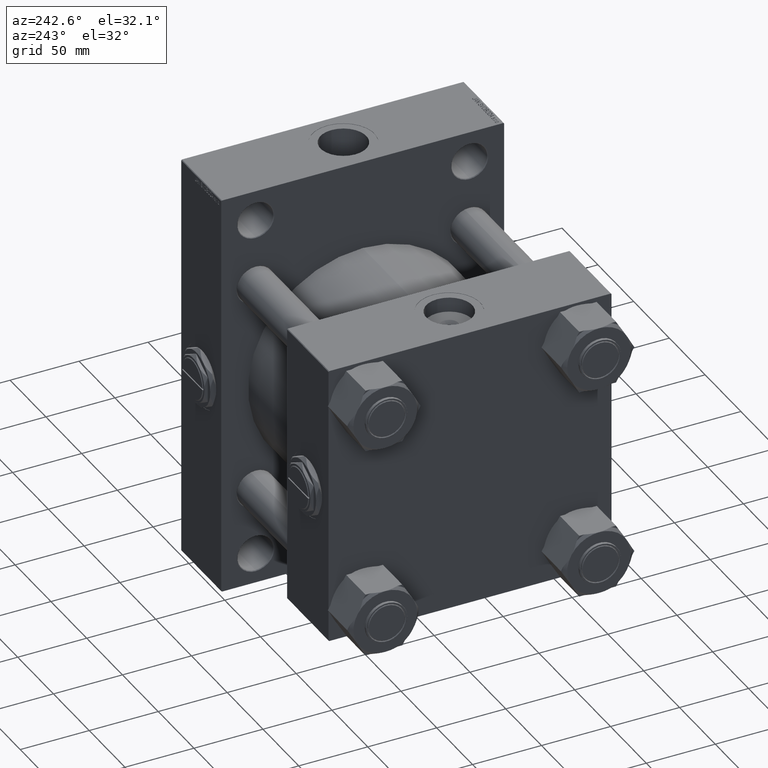
[diagram: clean part render]
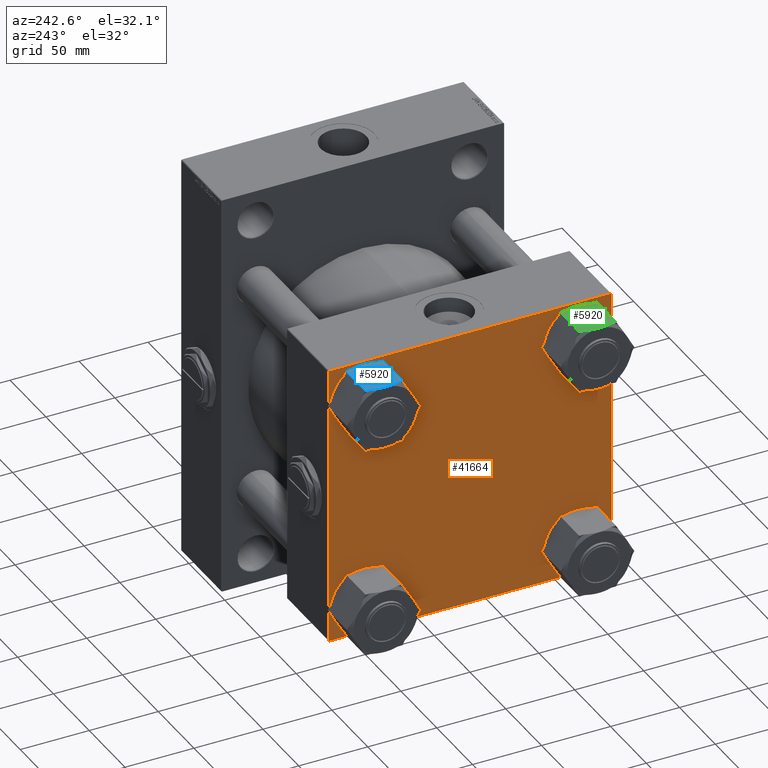
[diagram: same view with three faces highlighted in distinct colors, each labeled with its STEP entity id]
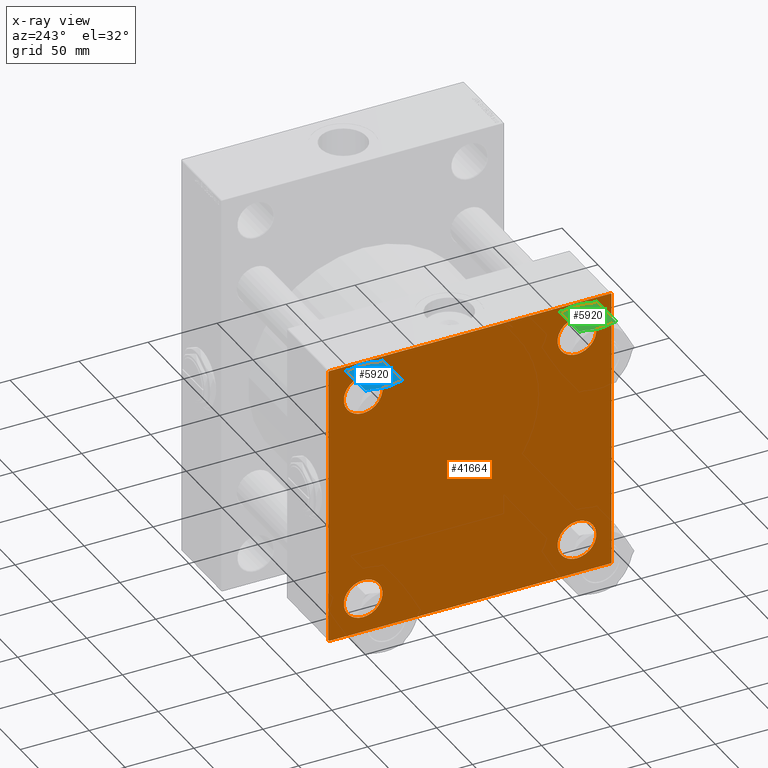
[diagram: x-ray of the same camera — body ghosted, the three highlighted faces saturated]
A machine part, auxiliary view with three faces highlighted in distinct colors.
The next image is the same camera in x-ray (body ghosted, the three faces saturated) — at least one of them is partly hidden behind the body in this view.
Their STEP definitions:

[orange] entity #41664 — the highlighted planar face has unit normal (-1, 0, 0).
#313 = CARTESIAN_POINT ( 'NONE',  ( 0.000000000000000000, -77.44999999999996021, -77.45000000000003126 ) ) ;
#320 = DIRECTION ( 'NONE',  ( 1.000000000000000000, -0.000000000000000000, -0.000000000000000000 ) ) ;
#1053 = CIRCLE ( 'NONE', #30814, 14.00000000000012434 ) ;
#1211 = ORIENTED_EDGE ( 'NONE', *, *, #16814, .T. ) ;
#2374 = DIRECTION ( 'NONE',  ( 1.000000000000000000, -0.000000000000000000, -0.000000000000000000 ) ) ;
#2419 = AXIS2_PLACEMENT_3D ( 'NONE', #3618, #320, #49461 ) ;
#2522 = LINE ( 'NONE', #14355, #8264 ) ;
#3566 = CARTESIAN_POINT ( 'NONE',  ( 0.000000000000000000, -102.2499999999999716, -102.2499999999999716 ) ) ;
#3618 = CARTESIAN_POINT ( 'NONE',  ( 0.000000000000000000, 77.44999999999998863, -77.45000000000001705 ) ) ;
#3768 = EDGE_LOOP ( 'NONE', ( #33969, #37242 ) ) ;
#3982 = VECTOR ( 'NONE', #48347, 1000.000000000000000 ) ;
#4395 = EDGE_CURVE ( 'NONE', #43389, #43873, #1053, .T. ) ;
#4599 = FACE_BOUND ( 'NONE', #3768, .T. ) ;
#4601 = VECTOR ( 'NONE', #26733, 1000.000000000000114 ) ;
#4613 = DIRECTION ( 'NONE',  ( 1.000000000000000000, -0.000000000000000000, -0.000000000000000000 ) ) ;
#4649 = VERTEX_POINT ( 'NONE', #40609 ) ;
#4988 = ORIENTED_EDGE ( 'NONE', *, *, #22493, .T. ) ;
#5573 = CARTESIAN_POINT ( 'NONE',  ( 0.000000000000000000, -102.4999999999999716, 102.0000000000000000 ) ) ;
#6041 = EDGE_CURVE ( 'NONE', #42962, #8964, #26854, .T. ) ;
#6396 = VERTEX_POINT ( 'NONE', #31850 ) ;
#6580 = EDGE_CURVE ( 'NONE', #6396, #20231, #25292, .T. ) ;
#6804 = ORIENTED_EDGE ( 'NONE', *, *, #21654, .F. ) ;
#7025 = LINE ( 'NONE', #22378, #3982 ) ;
#7135 = CARTESIAN_POINT ( 'NONE',  ( 0.000000000000000000, -101.9999999999999147, 102.5000000000000000 ) ) ;
#7502 = DIRECTION ( 'NONE',  ( -0.000000000000000000, 0.7071067811865474617, 0.7071067811865474617 ) ) ;
#7766 = ORIENTED_EDGE ( 'NONE', *, *, #33422, .T. ) ;
#8126 = PLANE ( 'NONE',  #10154 ) ;
#8264 = VECTOR ( 'NONE', #33254, 1000.000000000000114 ) ;
#8964 = VERTEX_POINT ( 'NONE', #12624 ) ;
#9339 = CARTESIAN_POINT ( 'NONE',  ( 0.000000000000000000, 102.5000000000000284, -102.4999999999999716 ) ) ;
#9638 = DIRECTION ( 'NONE',  ( 0.000000000000000000, 0.000000000000000000, 1.000000000000000000 ) ) ;
#9904 = VERTEX_POINT ( 'NONE', #5573 ) ;
#10154 = AXIS2_PLACEMENT_3D ( 'NONE', #31035, #11908, #20212 ) ;
#10166 = VECTOR ( 'NONE', #10232, 1000.000000000000114 ) ;
#10232 = DIRECTION ( 'NONE',  ( 0.000000000000000000, 0.7071067811865474617, -0.7071067811865474617 ) ) ;
#10457 = EDGE_CURVE ( 'NONE', #6396, #20692, #32406, .T. ) ;
#10612 = EDGE_LOOP ( 'NONE', ( #48595, #23602 ) ) ;
#11065 = DIRECTION ( 'NONE',  ( 0.000000000000000000, 0.000000000000000000, 1.000000000000000000 ) ) ;
#11589 = AXIS2_PLACEMENT_3D ( 'NONE', #24482, #24733, #9638 ) ;
#11764 = VERTEX_POINT ( 'NONE', #31800 ) ;
#11908 = DIRECTION ( 'NONE',  ( -1.000000000000000000, 0.000000000000000000, 0.000000000000000000 ) ) ;
#12336 = CARTESIAN_POINT ( 'NONE',  ( 0.000000000000000000, 102.5000000000000284, 102.0000000000000142 ) ) ;
#12486 = CARTESIAN_POINT ( 'NONE',  ( 0.000000000000000000, -77.44999999999996021, 63.44999999999991047 ) ) ;
#12624 = CARTESIAN_POINT ( 'NONE',  ( 0.000000000000000000, -77.44999999999996021, 91.45000000000015916 ) ) ;
#12928 = VERTEX_POINT ( 'NONE', #46358 ) ;
#13300 = EDGE_CURVE ( 'NONE', #13935, #36889, #45596, .T. ) ;
#13362 = ORIENTED_EDGE ( 'NONE', *, *, #47770, .T. ) ;
#13676 = CIRCLE ( 'NONE', #2419, 14.00000000000012434 ) ;
#13935 = VERTEX_POINT ( 'NONE', #20173 ) ;
#14355 = CARTESIAN_POINT ( 'NONE',  ( 0.000000000000000000, 102.2500000000000000, -102.2500000000000000 ) ) ;
#14798 = LINE ( 'NONE', #22362, #40673 ) ;
#15302 = ORIENTED_EDGE ( 'NONE', *, *, #6580, .F. ) ;
#15563 = ORIENTED_EDGE ( 'NONE', *, *, #37057, .T. ) ;
#15635 = DIRECTION ( 'NONE',  ( 0.000000000000000000, 0.000000000000000000, 1.000000000000000000 ) ) ;
#15672 = VERTEX_POINT ( 'NONE', #39352 ) ;
#16031 = CARTESIAN_POINT ( 'NONE',  ( 0.000000000000000000, 102.5000000000000284, 102.5000000000000284 ) ) ;
#16180 = FACE_BOUND ( 'NONE', #10612, .T. ) ;
#16814 = EDGE_CURVE ( 'NONE', #43873, #43389, #31932, .T. ) ;
#18693 = LINE ( 'NONE', #3566, #4601 ) ;
#18865 = DIRECTION ( 'NONE',  ( 1.000000000000000000, -0.000000000000000000, -0.000000000000000000 ) ) ;
#19455 = FACE_BOUND ( 'NONE', #47957, .T. ) ;
#19916 = DIRECTION ( 'NONE',  ( 1.000000000000000000, -0.000000000000000000, -0.000000000000000000 ) ) ;
#20173 = CARTESIAN_POINT ( 'NONE',  ( 0.000000000000000000, 77.44999999999998863, 91.45000000000014495 ) ) ;
#20212 = DIRECTION ( 'NONE',  ( 0.000000000000000000, 0.000000000000000000, 1.000000000000000000 ) ) ;
#20231 = VERTEX_POINT ( 'NONE', #7135 ) ;
#20692 = VERTEX_POINT ( 'NONE', #12336 ) ;
#21159 = LINE ( 'NONE', #9339, #25710 ) ;
#21654 = EDGE_CURVE ( 'NONE', #9904, #15672, #7025, .T. ) ;
#22362 = CARTESIAN_POINT ( 'NONE',  ( 0.000000000000000000, -102.2499999999999716, 102.2499999999999716 ) ) ;
#22378 = CARTESIAN_POINT ( 'NONE',  ( 0.000000000000000000, -102.4999999999999716, 102.5000000000000000 ) ) ;
#22493 = EDGE_CURVE ( 'NONE', #12928, #34610, #21159, .T. ) ;
#22679 = EDGE_LOOP ( 'NONE', ( #28746, #7766, #4988, #13362, #6804, #48556, #15302, #27073 ) ) ;
#22830 = VECTOR ( 'NONE', #25541, 1000.000000000000000 ) ;
#23174 = EDGE_CURVE ( 'NONE', #4649, #11764, #13676, .T. ) ;
#23582 = EDGE_LOOP ( 'NONE', ( #36798, #1211 ) ) ;
#23602 = ORIENTED_EDGE ( 'NONE', *, *, #32312, .T. ) ;
#23868 = DIRECTION ( 'NONE',  ( 1.000000000000000000, -0.000000000000000000, -0.000000000000000000 ) ) ;
#24482 = CARTESIAN_POINT ( 'NONE',  ( 0.000000000000000000, -77.44999999999996021, 77.45000000000003126 ) ) ;
#24555 = CARTESIAN_POINT ( 'NONE',  ( 0.000000000000000000, 102.5000000000000284, 102.5000000000000284 ) ) ;
#24733 = DIRECTION ( 'NONE',  ( 1.000000000000000000, -0.000000000000000000, -0.000000000000000000 ) ) ;
#25292 = LINE ( 'NONE', #24555, #22830 ) ;
#25541 = DIRECTION ( 'NONE',  ( 0.000000000000000000, -1.000000000000000000, -1.353930517835556973E-16 ) ) ;
#25710 = VECTOR ( 'NONE', #36769, 1000.000000000000000 ) ;
#26733 = DIRECTION ( 'NONE',  ( 0.000000000000000000, -0.7071067811865474617, 0.7071067811865474617 ) ) ;
#26854 = CIRCLE ( 'NONE', #11589, 14.00000000000012434 ) ;
#27073 = ORIENTED_EDGE ( 'NONE', *, *, #10457, .T. ) ;
#27188 = CARTESIAN_POINT ( 'NONE',  ( 0.000000000000000000, 77.44999999999998863, 77.45000000000001705 ) ) ;
#28746 = ORIENTED_EDGE ( 'NONE', *, *, #36194, .T. ) ;
#30652 = DIRECTION ( 'NONE',  ( 0.000000000000000000, 0.000000000000000000, -1.000000000000000000 ) ) ;
#30814 = AXIS2_PLACEMENT_3D ( 'NONE', #313, #4613, #46922 ) ;
#30990 = CARTESIAN_POINT ( 'NONE',  ( 0.000000000000000000, -77.44999999999996021, -63.44999999999991047 ) ) ;
#31035 = CARTESIAN_POINT ( 'NONE',  ( 0.000000000000000000, 0.000000000000000000, 0.000000000000000000 ) ) ;
#31163 = DIRECTION ( 'NONE',  ( 0.000000000000000000, 0.000000000000000000, 1.000000000000000000 ) ) ;
#31538 = FACE_BOUND ( 'NONE', #23582, .T. ) ;
#31800 = CARTESIAN_POINT ( 'NONE',  ( 0.000000000000000000, 77.44999999999998863, -91.45000000000014495 ) ) ;
#31850 = CARTESIAN_POINT ( 'NONE',  ( 0.000000000000000000, 102.0000000000000142, 102.5000000000000284 ) ) ;
#31932 = CIRCLE ( 'NONE', #43237, 14.00000000000012434 ) ;
#32312 = EDGE_CURVE ( 'NONE', #11764, #4649, #41237, .T. ) ;
#32406 = LINE ( 'NONE', #48513, #10166 ) ;
#33254 = DIRECTION ( 'NONE',  ( -0.000000000000000000, -0.7071067811865474617, -0.7071067811865474617 ) ) ;
#33422 = EDGE_CURVE ( 'NONE', #45341, #12928, #2522, .T. ) ;
#33521 = AXIS2_PLACEMENT_3D ( 'NONE', #38008, #18865, #11065 ) ;
#33969 = ORIENTED_EDGE ( 'NONE', *, *, #38880, .T. ) ;
#34122 = AXIS2_PLACEMENT_3D ( 'NONE', #27188, #42311, #38779 ) ;
#34610 = VERTEX_POINT ( 'NONE', #44909 ) ;
#35576 = FACE_OUTER_BOUND ( 'NONE', #22679, .T. ) ;
#35953 = CARTESIAN_POINT ( 'NONE',  ( 0.000000000000000000, -77.44999999999996021, 77.45000000000003126 ) ) ;
#36194 = EDGE_CURVE ( 'NONE', #20692, #45341, #42997, .T. ) ;
#36271 = CARTESIAN_POINT ( 'NONE',  ( 0.000000000000000000, 102.5000000000000284, -101.9999999999999147 ) ) ;
#36578 = CIRCLE ( 'NONE', #47839, 14.00000000000012434 ) ;
#36769 = DIRECTION ( 'NONE',  ( 0.000000000000000000, -1.000000000000000000, -1.353930517835556727E-16 ) ) ;
#36798 = ORIENTED_EDGE ( 'NONE', *, *, #4395, .T. ) ;
#36889 = VERTEX_POINT ( 'NONE', #37294 ) ;
#37057 = EDGE_CURVE ( 'NONE', #36889, #13935, #40566, .T. ) ;
#37242 = ORIENTED_EDGE ( 'NONE', *, *, #6041, .T. ) ;
#37294 = CARTESIAN_POINT ( 'NONE',  ( 0.000000000000000000, 77.44999999999998863, 63.44999999999989626 ) ) ;
#38008 = CARTESIAN_POINT ( 'NONE',  ( 0.000000000000000000, 77.44999999999998863, 77.45000000000001705 ) ) ;
#38779 = DIRECTION ( 'NONE',  ( 0.000000000000000000, 0.000000000000000000, 1.000000000000000000 ) ) ;
#38880 = EDGE_CURVE ( 'NONE', #8964, #42962, #36578, .T. ) ;
#39352 = CARTESIAN_POINT ( 'NONE',  ( 0.000000000000000000, -102.5000000000000000, -101.9999999999998863 ) ) ;
#40421 = AXIS2_PLACEMENT_3D ( 'NONE', #46121, #19916, #15635 ) ;
#40566 = CIRCLE ( 'NONE', #34122, 14.00000000000012434 ) ;
#40609 = CARTESIAN_POINT ( 'NONE',  ( 0.000000000000000000, 77.44999999999998863, -63.44999999999989626 ) ) ;
#40673 = VECTOR ( 'NONE', #7502, 1000.000000000000114 ) ;
#40950 = EDGE_CURVE ( 'NONE', #9904, #20231, #14798, .T. ) ;
#41237 = CIRCLE ( 'NONE', #40421, 14.00000000000012434 ) ;
#41664 = ADVANCED_FACE ( 'NONE', ( #4599, #31538, #16180, #19455, #35576 ), #8126, .T. ) ;
#42281 = CARTESIAN_POINT ( 'NONE',  ( 0.000000000000000000, -77.44999999999996021, -91.45000000000015916 ) ) ;
#42311 = DIRECTION ( 'NONE',  ( 1.000000000000000000, -0.000000000000000000, -0.000000000000000000 ) ) ;
#42485 = ORIENTED_EDGE ( 'NONE', *, *, #13300, .T. ) ;
#42962 = VERTEX_POINT ( 'NONE', #12486 ) ;
#42997 = LINE ( 'NONE', #16031, #48604 ) ;
#43237 = AXIS2_PLACEMENT_3D ( 'NONE', #48226, #2374, #48704 ) ;
#43389 = VERTEX_POINT ( 'NONE', #30990 ) ;
#43873 = VERTEX_POINT ( 'NONE', #42281 ) ;
#44909 = CARTESIAN_POINT ( 'NONE',  ( 0.000000000000000000, -101.9999999999999432, -102.5000000000000000 ) ) ;
#45341 = VERTEX_POINT ( 'NONE', #36271 ) ;
#45596 = CIRCLE ( 'NONE', #33521, 14.00000000000012434 ) ;
#46121 = CARTESIAN_POINT ( 'NONE',  ( 0.000000000000000000, 77.44999999999998863, -77.45000000000001705 ) ) ;
#46358 = CARTESIAN_POINT ( 'NONE',  ( 0.000000000000000000, 102.0000000000000142, -102.4999999999999716 ) ) ;
#46922 = DIRECTION ( 'NONE',  ( 0.000000000000000000, 0.000000000000000000, 1.000000000000000000 ) ) ;
#47770 = EDGE_CURVE ( 'NONE', #34610, #15672, #18693, .T. ) ;
#47839 = AXIS2_PLACEMENT_3D ( 'NONE', #35953, #23868, #31163 ) ;
#47957 = EDGE_LOOP ( 'NONE', ( #42485, #15563 ) ) ;
#48226 = CARTESIAN_POINT ( 'NONE',  ( 0.000000000000000000, -77.44999999999996021, -77.45000000000003126 ) ) ;
#48347 = DIRECTION ( 'NONE',  ( 0.000000000000000000, -1.353930517835556973E-16, -1.000000000000000000 ) ) ;
#48513 = CARTESIAN_POINT ( 'NONE',  ( 0.000000000000000000, 102.2500000000000142, 102.2500000000000142 ) ) ;
#48556 = ORIENTED_EDGE ( 'NONE', *, *, #40950, .T. ) ;
#48595 = ORIENTED_EDGE ( 'NONE', *, *, #23174, .T. ) ;
#48604 = VECTOR ( 'NONE', #30652, 1000.000000000000000 ) ;
#48704 = DIRECTION ( 'NONE',  ( 0.000000000000000000, 0.000000000000000000, 1.000000000000000000 ) ) ;
#49461 = DIRECTION ( 'NONE',  ( 0.000000000000000000, 0.000000000000000000, 1.000000000000000000 ) ) ;

[blue] entity #5920 — the highlighted planar face has unit normal (0, -0, -1).
#283 = CARTESIAN_POINT ( 'NONE',  ( -6.612214801278793352, -23.05359624874175495, -0.9172679422720545483 ) ) ;
#586 = CARTESIAN_POINT ( 'NONE',  ( 13.31000000000000938, -23.05359624874175850, -28.99999999999999645 ) ) ;
#827 = EDGE_CURVE ( 'NONE', #32111, #29596, #44716, .T. ) ;
#1312 = CARTESIAN_POINT ( 'NONE',  ( -13.31000000000000405, -23.05359624874176205, -2.000000000000001776 ) ) ;
#1352 = CARTESIAN_POINT ( 'NONE',  ( -9.808893158505089360, -23.05359624874176205, -28.99999999999999645 ) ) ;
#1600 = B_SPLINE_CURVE_WITH_KNOTS ( 'NONE', 3,
 ( #35052, #38095, #42619, #283, #3584, #19193, #30527, #34561 ),
 .UNSPECIFIED., .F., .F.,
 ( 4, 2, 2, 4 ),
 ( 0.03704433557245612185, 0.03955680769153651494, 0.04206927981061690802, 0.04709422404877768725 ),
 .UNSPECIFIED. ) ;
#1818 = DIRECTION ( 'NONE',  ( -0.000000000000000000, -0.000000000000000000, 1.000000000000000000 ) ) ;
#2270 = CARTESIAN_POINT ( 'NONE',  ( 13.31000000000000938, -23.05359624874175850, -2.000000000000001776 ) ) ;
#2330 = DIRECTION ( 'NONE',  ( -1.000000000000000000, -1.303323422972807304E-16, 0.000000000000000000 ) ) ;
#2564 = VECTOR ( 'NONE', #34106, 1000.000000000000000 ) ;
#3554 = CARTESIAN_POINT ( 'NONE',  ( 3.004629197474320035E-15, -23.05359624874177271, -31.00000000000000000 ) ) ;
#3584 = CARTESIAN_POINT ( 'NONE',  ( -5.801497649255014544, -23.05359624874176205, -0.7053567131665616774 ) ) ;
#4489 = CARTESIAN_POINT ( 'NONE',  ( -9.808893158505089360, -23.05359624874176205, -28.99999999999999645 ) ) ;
#4850 = CARTESIAN_POINT ( 'NONE',  ( 4.192182187841031471, -23.05359624874176205, -0.3644771254818050532 ) ) ;
#5122 = LINE ( 'NONE', #39884, #34880 ) ;
#5710 = CARTESIAN_POINT ( 'NONE',  ( 13.31000000000000938, -23.05359624874175850, -2.000000000000001776 ) ) ;
#5722 = EDGE_CURVE ( 'NONE', #32978, #48083, #5122, .T. ) ;
#5920 = ADVANCED_FACE ( 'NONE', ( #41384 ), #22481, .F. ) ;
#6142 = VERTEX_POINT ( 'NONE', #29493 ) ;
#6746 = EDGE_CURVE ( 'NONE', #38990, #6142, #10380, .T. ) ;
#6774 = VERTEX_POINT ( 'NONE', #1312 ) ;
#6972 = EDGE_CURVE ( 'NONE', #32111, #33607, #36323, .T. ) ;
#7350 = CARTESIAN_POINT ( 'NONE',  ( 9.024432966208934204, -23.05359624874176205, -29.30712901002065962 ) ) ;
#7531 = CARTESIAN_POINT ( 'NONE',  ( -6.641506094493685453, -23.05359624874176561, -30.11551404775777030 ) ) ;
#7625 = DIRECTION ( 'NONE',  ( -1.000000000000000000, -1.303323422972807304E-16, 0.000000000000000000 ) ) ;
#10049 = EDGE_CURVE ( 'NONE', #48083, #6774, #18136, .T. ) ;
#10380 = B_SPLINE_CURVE_WITH_KNOTS ( 'NONE', 3,
 ( #11163, #43138, #23484, #12150, #16178, #15671, #4850, #23735, #16682, #42633 ),
 .UNSPECIFIED., .F., .F.,
 ( 4, 2, 2, 2, 4 ),
 ( 0.04709422404877768725, 0.04834823400549317224, 0.04960224396220865029, 0.05211026387563961332, 0.05712630370250153244 ),
 .UNSPECIFIED. ) ;
#11163 = CARTESIAN_POINT ( 'NONE',  ( 3.004629197474320035E-15, -23.05359624874177271, 0.000000000000000000 ) ) ;
#12150 = CARTESIAN_POINT ( 'NONE',  ( 1.693046291327868325, -23.05359624874175850, -0.05822588947892674838 ) ) ;
#12886 = CARTESIAN_POINT ( 'NONE',  ( -9.808893158505080478, -23.05359624874176205, -2.000000000000000000 ) ) ;
#13443 = B_SPLINE_CURVE_WITH_KNOTS ( 'NONE', 3,
 ( #44894, #7350, #18180, #45869, #37820, #33790, #42090, #3554 ),
 .UNSPECIFIED., .F., .F.,
 ( 4, 2, 2, 4 ),
 ( 0.03704433557245610797, 0.03955680769153650106, 0.04206927981061689414, 0.04709422404877768031 ),
 .UNSPECIFIED. ) ;
#14357 = DIRECTION ( 'NONE',  ( -0.000000000000000000, -0.000000000000000000, 1.000000000000000000 ) ) ;
#14675 = DIRECTION ( 'NONE',  ( -1.303323422972807304E-16, 1.000000000000000000, 0.000000000000000000 ) ) ;
#15473 = EDGE_CURVE ( 'NONE', #6774, #29187, #40222, .T. ) ;
#15671 = CARTESIAN_POINT ( 'NONE',  ( 3.366747807636262912, -23.05359624874175850, -0.2297327368970329131 ) ) ;
#15839 = CARTESIAN_POINT ( 'NONE',  ( 9.808893158505096466, -23.05359624874176205, -28.99999999999999645 ) ) ;
#15887 = VECTOR ( 'NONE', #47276, 1000.000000000000000 ) ;
#16178 = CARTESIAN_POINT ( 'NONE',  ( 2.113373616412109968, -23.05359624874176205, -0.09294080339332899676 ) ) ;
#16682 = CARTESIAN_POINT ( 'NONE',  ( 8.238500401260312245, -23.05359624874175495, -1.385165521956630785 ) ) ;
#18136 = LINE ( 'NONE', #33500, #47514 ) ;
#18180 = CARTESIAN_POINT ( 'NONE',  ( 8.222377524857060749, -23.05359624874175495, -29.58957291554792590 ) ) ;
#19114 = CARTESIAN_POINT ( 'NONE',  ( -3.366747807636256251, -23.05359624874176916, -30.77026726310296212 ) ) ;
#19193 = CARTESIAN_POINT ( 'NONE',  ( -3.350210548520257792, -23.05359624874175850, -0.1873351914320835754 ) ) ;
#20473 = VECTOR ( 'NONE', #1818, 1000.000000000000000 ) ;
#20630 = ORIENTED_EDGE ( 'NONE', *, *, #6746, .F. ) ;
#21112 = ORIENTED_EDGE ( 'NONE', *, *, #827, .F. ) ;
#21355 = CARTESIAN_POINT ( 'NONE',  ( -13.31000000000000405, -23.05359624874176205, -28.99999999999999645 ) ) ;
#22481 = PLANE ( 'NONE',  #39751 ) ;
#23484 = CARTESIAN_POINT ( 'NONE',  ( 0.8470567002417638269, -23.05359624874175140, -0.01168982920648786727 ) ) ;
#23735 = CARTESIAN_POINT ( 'NONE',  ( 6.641506094493679235, -23.05359624874176205, -0.8844859522422295894 ) ) ;
#24176 = ORIENTED_EDGE ( 'NONE', *, *, #5722, .F. ) ;
#24308 = CARTESIAN_POINT ( 'NONE',  ( 3.004629197474320035E-15, -23.05359624874177271, -31.00000000000000000 ) ) ;
#25493 = VECTOR ( 'NONE', #36279, 1000.000000000000000 ) ;
#25815 = EDGE_LOOP ( 'NONE', ( #21112, #41026, #37747, #20630, #49797, #25906, #42053, #24176, #44361, #39350 ) ) ;
#25906 = ORIENTED_EDGE ( 'NONE', *, *, #15473, .F. ) ;
#28474 = LINE ( 'NONE', #2270, #25493 ) ;
#29187 = VERTEX_POINT ( 'NONE', #12886 ) ;
#29493 = CARTESIAN_POINT ( 'NONE',  ( 9.808893158505085808, -23.05359624874176205, -2.000000000000000000 ) ) ;
#29596 = VERTEX_POINT ( 'NONE', #15839 ) ;
#30527 = CARTESIAN_POINT ( 'NONE',  ( -1.690332161126401278, -23.05359624874176205, 1.223793202193012972E-14 ) ) ;
#30691 = CARTESIAN_POINT ( 'NONE',  ( -0.8470567002417531688, -23.05359624874176205, -30.98831017079351113 ) ) ;
#30931 = CARTESIAN_POINT ( 'NONE',  ( -0.4218342054646766481, -23.05359624874176561, -31.00000000000002132 ) ) ;
#31183 = CARTESIAN_POINT ( 'NONE',  ( -1.693046291327859887, -23.05359624874175495, -30.94177411052105953 ) ) ;
#32111 = VERTEX_POINT ( 'NONE', #586 ) ;
#32978 = VERTEX_POINT ( 'NONE', #1352 ) ;
#33500 = CARTESIAN_POINT ( 'NONE',  ( -13.31000000000000405, -23.05359624874176205, -31.00000000000000000 ) ) ;
#33607 = VERTEX_POINT ( 'NONE', #36231 ) ;
#33790 = CARTESIAN_POINT ( 'NONE',  ( 3.350210548520277332, -23.05359624874175495, -30.81266480856790935 ) ) ;
#33861 = CARTESIAN_POINT ( 'NONE',  ( 13.31000000000000938, -23.05359624874175850, -28.99999999999999645 ) ) ;
#34106 = DIRECTION ( 'NONE',  ( -1.000000000000000000, -1.303323422972807304E-16, 0.000000000000000000 ) ) ;
#34479 = CARTESIAN_POINT ( 'NONE',  ( -4.192182187841029695, -23.05359624874176561, -30.63552287451819822 ) ) ;
#34561 = CARTESIAN_POINT ( 'NONE',  ( 3.004629197474320035E-15, -23.05359624874177271, 0.000000000000000000 ) ) ;
#34880 = VECTOR ( 'NONE', #2330, 1000.000000000000000 ) ;
#35052 = CARTESIAN_POINT ( 'NONE',  ( -9.808893158505080478, -23.05359624874176205, -2.000000000000000000 ) ) ;
#36231 = CARTESIAN_POINT ( 'NONE',  ( 13.31000000000000938, -23.05359624874175850, -2.000000000000001776 ) ) ;
#36279 = DIRECTION ( 'NONE',  ( 1.000000000000000000, 1.303323422972807304E-16, -0.000000000000000000 ) ) ;
#36323 = LINE ( 'NONE', #44383, #20473 ) ;
#36698 = CARTESIAN_POINT ( 'NONE',  ( 3.004629197474320035E-15, -23.05359624874177271, 0.000000000000000000 ) ) ;
#36805 = B_SPLINE_CURVE_WITH_KNOTS ( 'NONE', 3,
 ( #46805, #30931, #30691, #31183, #43036, #19114, #34479, #7531, #49837, #4489 ),
 .UNSPECIFIED., .F., .F.,
 ( 4, 2, 2, 2, 4 ),
 ( 0.04709422404877768031, 0.04834823400549316530, 0.04960224396220865029, 0.05211026387563962026, 0.05712630370250156020 ),
 .UNSPECIFIED. ) ;
#37747 = ORIENTED_EDGE ( 'NONE', *, *, #43551, .F. ) ;
#37820 = CARTESIAN_POINT ( 'NONE',  ( 5.801497649255038525, -23.05359624874175850, -30.29464328683343410 ) ) ;
#38095 = CARTESIAN_POINT ( 'NONE',  ( -9.024432966208918216, -23.05359624874176561, -1.692870989979335050 ) ) ;
#38990 = VERTEX_POINT ( 'NONE', #36698 ) ;
#39350 = ORIENTED_EDGE ( 'NONE', *, *, #43339, .F. ) ;
#39751 = AXIS2_PLACEMENT_3D ( 'NONE', #44926, #14675, #7625 ) ;
#39884 = CARTESIAN_POINT ( 'NONE',  ( 13.31000000000000938, -23.05359624874175850, -28.99999999999999645 ) ) ;
#40222 = LINE ( 'NONE', #5710, #15887 ) ;
#41026 = ORIENTED_EDGE ( 'NONE', *, *, #6972, .T. ) ;
#41382 = VERTEX_POINT ( 'NONE', #24308 ) ;
#41384 = FACE_OUTER_BOUND ( 'NONE', #25815, .T. ) ;
#42053 = ORIENTED_EDGE ( 'NONE', *, *, #10049, .F. ) ;
#42090 = CARTESIAN_POINT ( 'NONE',  ( 1.690332161126417709, -23.05359624874175495, -31.00000000000001421 ) ) ;
#42619 = CARTESIAN_POINT ( 'NONE',  ( -8.222377524857041209, -23.05359624874176205, -1.410427084452070101 ) ) ;
#42633 = CARTESIAN_POINT ( 'NONE',  ( 9.808893158505085808, -23.05359624874176205, -2.000000000000000000 ) ) ;
#43036 = CARTESIAN_POINT ( 'NONE',  ( -2.113373616412098865, -23.05359624874176561, -30.90705919660667078 ) ) ;
#43138 = CARTESIAN_POINT ( 'NONE',  ( 0.4218342054646910810, -23.05359624874176205, 1.211341817868374915E-14 ) ) ;
#43339 = EDGE_CURVE ( 'NONE', #29596, #41382, #13443, .T. ) ;
#43551 = EDGE_CURVE ( 'NONE', #6142, #33607, #28474, .T. ) ;
#43816 = EDGE_CURVE ( 'NONE', #41382, #32978, #36805, .T. ) ;
#44361 = ORIENTED_EDGE ( 'NONE', *, *, #43816, .F. ) ;
#44383 = CARTESIAN_POINT ( 'NONE',  ( 13.31000000000000938, -23.05359624874175850, -31.00000000000000000 ) ) ;
#44716 = LINE ( 'NONE', #33861, #2564 ) ;
#44894 = CARTESIAN_POINT ( 'NONE',  ( 9.808893158505096466, -23.05359624874176205, -28.99999999999999645 ) ) ;
#44926 = CARTESIAN_POINT ( 'NONE',  ( 13.31000000000000938, -23.05359624874175850, -31.00000000000000000 ) ) ;
#45869 = CARTESIAN_POINT ( 'NONE',  ( 6.612214801278809340, -23.05359624874175140, -30.08273205772793091 ) ) ;
#46805 = CARTESIAN_POINT ( 'NONE',  ( 3.004629197474320035E-15, -23.05359624874177271, -31.00000000000000000 ) ) ;
#47276 = DIRECTION ( 'NONE',  ( 1.000000000000000000, 1.303323422972807304E-16, -0.000000000000000000 ) ) ;
#47514 = VECTOR ( 'NONE', #14357, 1000.000000000000000 ) ;
#48083 = VERTEX_POINT ( 'NONE', #21355 ) ;
#49797 = ORIENTED_EDGE ( 'NONE', *, *, #49874, .F. ) ;
#49837 = CARTESIAN_POINT ( 'NONE',  ( -8.238500401260319350, -23.05359624874176205, -29.61483447804336322 ) ) ;
#49874 = EDGE_CURVE ( 'NONE', #29187, #38990, #1600, .T. ) ;

[green] entity #5920 — the highlighted planar face has unit normal (0, -0, -1).
#283 = CARTESIAN_POINT ( 'NONE',  ( -6.612214801278793352, -23.05359624874175495, -0.9172679422720545483 ) ) ;
#586 = CARTESIAN_POINT ( 'NONE',  ( 13.31000000000000938, -23.05359624874175850, -28.99999999999999645 ) ) ;
#827 = EDGE_CURVE ( 'NONE', #32111, #29596, #44716, .T. ) ;
#1312 = CARTESIAN_POINT ( 'NONE',  ( -13.31000000000000405, -23.05359624874176205, -2.000000000000001776 ) ) ;
#1352 = CARTESIAN_POINT ( 'NONE',  ( -9.808893158505089360, -23.05359624874176205, -28.99999999999999645 ) ) ;
#1600 = B_SPLINE_CURVE_WITH_KNOTS ( 'NONE', 3,
 ( #35052, #38095, #42619, #283, #3584, #19193, #30527, #34561 ),
 .UNSPECIFIED., .F., .F.,
 ( 4, 2, 2, 4 ),
 ( 0.03704433557245612185, 0.03955680769153651494, 0.04206927981061690802, 0.04709422404877768725 ),
 .UNSPECIFIED. ) ;
#1818 = DIRECTION ( 'NONE',  ( -0.000000000000000000, -0.000000000000000000, 1.000000000000000000 ) ) ;
#2270 = CARTESIAN_POINT ( 'NONE',  ( 13.31000000000000938, -23.05359624874175850, -2.000000000000001776 ) ) ;
#2330 = DIRECTION ( 'NONE',  ( -1.000000000000000000, -1.303323422972807304E-16, 0.000000000000000000 ) ) ;
#2564 = VECTOR ( 'NONE', #34106, 1000.000000000000000 ) ;
#3554 = CARTESIAN_POINT ( 'NONE',  ( 3.004629197474320035E-15, -23.05359624874177271, -31.00000000000000000 ) ) ;
#3584 = CARTESIAN_POINT ( 'NONE',  ( -5.801497649255014544, -23.05359624874176205, -0.7053567131665616774 ) ) ;
#4489 = CARTESIAN_POINT ( 'NONE',  ( -9.808893158505089360, -23.05359624874176205, -28.99999999999999645 ) ) ;
#4850 = CARTESIAN_POINT ( 'NONE',  ( 4.192182187841031471, -23.05359624874176205, -0.3644771254818050532 ) ) ;
#5122 = LINE ( 'NONE', #39884, #34880 ) ;
#5710 = CARTESIAN_POINT ( 'NONE',  ( 13.31000000000000938, -23.05359624874175850, -2.000000000000001776 ) ) ;
#5722 = EDGE_CURVE ( 'NONE', #32978, #48083, #5122, .T. ) ;
#5920 = ADVANCED_FACE ( 'NONE', ( #41384 ), #22481, .F. ) ;
#6142 = VERTEX_POINT ( 'NONE', #29493 ) ;
#6746 = EDGE_CURVE ( 'NONE', #38990, #6142, #10380, .T. ) ;
#6774 = VERTEX_POINT ( 'NONE', #1312 ) ;
#6972 = EDGE_CURVE ( 'NONE', #32111, #33607, #36323, .T. ) ;
#7350 = CARTESIAN_POINT ( 'NONE',  ( 9.024432966208934204, -23.05359624874176205, -29.30712901002065962 ) ) ;
#7531 = CARTESIAN_POINT ( 'NONE',  ( -6.641506094493685453, -23.05359624874176561, -30.11551404775777030 ) ) ;
#7625 = DIRECTION ( 'NONE',  ( -1.000000000000000000, -1.303323422972807304E-16, 0.000000000000000000 ) ) ;
#10049 = EDGE_CURVE ( 'NONE', #48083, #6774, #18136, .T. ) ;
#10380 = B_SPLINE_CURVE_WITH_KNOTS ( 'NONE', 3,
 ( #11163, #43138, #23484, #12150, #16178, #15671, #4850, #23735, #16682, #42633 ),
 .UNSPECIFIED., .F., .F.,
 ( 4, 2, 2, 2, 4 ),
 ( 0.04709422404877768725, 0.04834823400549317224, 0.04960224396220865029, 0.05211026387563961332, 0.05712630370250153244 ),
 .UNSPECIFIED. ) ;
#11163 = CARTESIAN_POINT ( 'NONE',  ( 3.004629197474320035E-15, -23.05359624874177271, 0.000000000000000000 ) ) ;
#12150 = CARTESIAN_POINT ( 'NONE',  ( 1.693046291327868325, -23.05359624874175850, -0.05822588947892674838 ) ) ;
#12886 = CARTESIAN_POINT ( 'NONE',  ( -9.808893158505080478, -23.05359624874176205, -2.000000000000000000 ) ) ;
#13443 = B_SPLINE_CURVE_WITH_KNOTS ( 'NONE', 3,
 ( #44894, #7350, #18180, #45869, #37820, #33790, #42090, #3554 ),
 .UNSPECIFIED., .F., .F.,
 ( 4, 2, 2, 4 ),
 ( 0.03704433557245610797, 0.03955680769153650106, 0.04206927981061689414, 0.04709422404877768031 ),
 .UNSPECIFIED. ) ;
#14357 = DIRECTION ( 'NONE',  ( -0.000000000000000000, -0.000000000000000000, 1.000000000000000000 ) ) ;
#14675 = DIRECTION ( 'NONE',  ( -1.303323422972807304E-16, 1.000000000000000000, 0.000000000000000000 ) ) ;
#15473 = EDGE_CURVE ( 'NONE', #6774, #29187, #40222, .T. ) ;
#15671 = CARTESIAN_POINT ( 'NONE',  ( 3.366747807636262912, -23.05359624874175850, -0.2297327368970329131 ) ) ;
#15839 = CARTESIAN_POINT ( 'NONE',  ( 9.808893158505096466, -23.05359624874176205, -28.99999999999999645 ) ) ;
#15887 = VECTOR ( 'NONE', #47276, 1000.000000000000000 ) ;
#16178 = CARTESIAN_POINT ( 'NONE',  ( 2.113373616412109968, -23.05359624874176205, -0.09294080339332899676 ) ) ;
#16682 = CARTESIAN_POINT ( 'NONE',  ( 8.238500401260312245, -23.05359624874175495, -1.385165521956630785 ) ) ;
#18136 = LINE ( 'NONE', #33500, #47514 ) ;
#18180 = CARTESIAN_POINT ( 'NONE',  ( 8.222377524857060749, -23.05359624874175495, -29.58957291554792590 ) ) ;
#19114 = CARTESIAN_POINT ( 'NONE',  ( -3.366747807636256251, -23.05359624874176916, -30.77026726310296212 ) ) ;
#19193 = CARTESIAN_POINT ( 'NONE',  ( -3.350210548520257792, -23.05359624874175850, -0.1873351914320835754 ) ) ;
#20473 = VECTOR ( 'NONE', #1818, 1000.000000000000000 ) ;
#20630 = ORIENTED_EDGE ( 'NONE', *, *, #6746, .F. ) ;
#21112 = ORIENTED_EDGE ( 'NONE', *, *, #827, .F. ) ;
#21355 = CARTESIAN_POINT ( 'NONE',  ( -13.31000000000000405, -23.05359624874176205, -28.99999999999999645 ) ) ;
#22481 = PLANE ( 'NONE',  #39751 ) ;
#23484 = CARTESIAN_POINT ( 'NONE',  ( 0.8470567002417638269, -23.05359624874175140, -0.01168982920648786727 ) ) ;
#23735 = CARTESIAN_POINT ( 'NONE',  ( 6.641506094493679235, -23.05359624874176205, -0.8844859522422295894 ) ) ;
#24176 = ORIENTED_EDGE ( 'NONE', *, *, #5722, .F. ) ;
#24308 = CARTESIAN_POINT ( 'NONE',  ( 3.004629197474320035E-15, -23.05359624874177271, -31.00000000000000000 ) ) ;
#25493 = VECTOR ( 'NONE', #36279, 1000.000000000000000 ) ;
#25815 = EDGE_LOOP ( 'NONE', ( #21112, #41026, #37747, #20630, #49797, #25906, #42053, #24176, #44361, #39350 ) ) ;
#25906 = ORIENTED_EDGE ( 'NONE', *, *, #15473, .F. ) ;
#28474 = LINE ( 'NONE', #2270, #25493 ) ;
#29187 = VERTEX_POINT ( 'NONE', #12886 ) ;
#29493 = CARTESIAN_POINT ( 'NONE',  ( 9.808893158505085808, -23.05359624874176205, -2.000000000000000000 ) ) ;
#29596 = VERTEX_POINT ( 'NONE', #15839 ) ;
#30527 = CARTESIAN_POINT ( 'NONE',  ( -1.690332161126401278, -23.05359624874176205, 1.223793202193012972E-14 ) ) ;
#30691 = CARTESIAN_POINT ( 'NONE',  ( -0.8470567002417531688, -23.05359624874176205, -30.98831017079351113 ) ) ;
#30931 = CARTESIAN_POINT ( 'NONE',  ( -0.4218342054646766481, -23.05359624874176561, -31.00000000000002132 ) ) ;
#31183 = CARTESIAN_POINT ( 'NONE',  ( -1.693046291327859887, -23.05359624874175495, -30.94177411052105953 ) ) ;
#32111 = VERTEX_POINT ( 'NONE', #586 ) ;
#32978 = VERTEX_POINT ( 'NONE', #1352 ) ;
#33500 = CARTESIAN_POINT ( 'NONE',  ( -13.31000000000000405, -23.05359624874176205, -31.00000000000000000 ) ) ;
#33607 = VERTEX_POINT ( 'NONE', #36231 ) ;
#33790 = CARTESIAN_POINT ( 'NONE',  ( 3.350210548520277332, -23.05359624874175495, -30.81266480856790935 ) ) ;
#33861 = CARTESIAN_POINT ( 'NONE',  ( 13.31000000000000938, -23.05359624874175850, -28.99999999999999645 ) ) ;
#34106 = DIRECTION ( 'NONE',  ( -1.000000000000000000, -1.303323422972807304E-16, 0.000000000000000000 ) ) ;
#34479 = CARTESIAN_POINT ( 'NONE',  ( -4.192182187841029695, -23.05359624874176561, -30.63552287451819822 ) ) ;
#34561 = CARTESIAN_POINT ( 'NONE',  ( 3.004629197474320035E-15, -23.05359624874177271, 0.000000000000000000 ) ) ;
#34880 = VECTOR ( 'NONE', #2330, 1000.000000000000000 ) ;
#35052 = CARTESIAN_POINT ( 'NONE',  ( -9.808893158505080478, -23.05359624874176205, -2.000000000000000000 ) ) ;
#36231 = CARTESIAN_POINT ( 'NONE',  ( 13.31000000000000938, -23.05359624874175850, -2.000000000000001776 ) ) ;
#36279 = DIRECTION ( 'NONE',  ( 1.000000000000000000, 1.303323422972807304E-16, -0.000000000000000000 ) ) ;
#36323 = LINE ( 'NONE', #44383, #20473 ) ;
#36698 = CARTESIAN_POINT ( 'NONE',  ( 3.004629197474320035E-15, -23.05359624874177271, 0.000000000000000000 ) ) ;
#36805 = B_SPLINE_CURVE_WITH_KNOTS ( 'NONE', 3,
 ( #46805, #30931, #30691, #31183, #43036, #19114, #34479, #7531, #49837, #4489 ),
 .UNSPECIFIED., .F., .F.,
 ( 4, 2, 2, 2, 4 ),
 ( 0.04709422404877768031, 0.04834823400549316530, 0.04960224396220865029, 0.05211026387563962026, 0.05712630370250156020 ),
 .UNSPECIFIED. ) ;
#37747 = ORIENTED_EDGE ( 'NONE', *, *, #43551, .F. ) ;
#37820 = CARTESIAN_POINT ( 'NONE',  ( 5.801497649255038525, -23.05359624874175850, -30.29464328683343410 ) ) ;
#38095 = CARTESIAN_POINT ( 'NONE',  ( -9.024432966208918216, -23.05359624874176561, -1.692870989979335050 ) ) ;
#38990 = VERTEX_POINT ( 'NONE', #36698 ) ;
#39350 = ORIENTED_EDGE ( 'NONE', *, *, #43339, .F. ) ;
#39751 = AXIS2_PLACEMENT_3D ( 'NONE', #44926, #14675, #7625 ) ;
#39884 = CARTESIAN_POINT ( 'NONE',  ( 13.31000000000000938, -23.05359624874175850, -28.99999999999999645 ) ) ;
#40222 = LINE ( 'NONE', #5710, #15887 ) ;
#41026 = ORIENTED_EDGE ( 'NONE', *, *, #6972, .T. ) ;
#41382 = VERTEX_POINT ( 'NONE', #24308 ) ;
#41384 = FACE_OUTER_BOUND ( 'NONE', #25815, .T. ) ;
#42053 = ORIENTED_EDGE ( 'NONE', *, *, #10049, .F. ) ;
#42090 = CARTESIAN_POINT ( 'NONE',  ( 1.690332161126417709, -23.05359624874175495, -31.00000000000001421 ) ) ;
#42619 = CARTESIAN_POINT ( 'NONE',  ( -8.222377524857041209, -23.05359624874176205, -1.410427084452070101 ) ) ;
#42633 = CARTESIAN_POINT ( 'NONE',  ( 9.808893158505085808, -23.05359624874176205, -2.000000000000000000 ) ) ;
#43036 = CARTESIAN_POINT ( 'NONE',  ( -2.113373616412098865, -23.05359624874176561, -30.90705919660667078 ) ) ;
#43138 = CARTESIAN_POINT ( 'NONE',  ( 0.4218342054646910810, -23.05359624874176205, 1.211341817868374915E-14 ) ) ;
#43339 = EDGE_CURVE ( 'NONE', #29596, #41382, #13443, .T. ) ;
#43551 = EDGE_CURVE ( 'NONE', #6142, #33607, #28474, .T. ) ;
#43816 = EDGE_CURVE ( 'NONE', #41382, #32978, #36805, .T. ) ;
#44361 = ORIENTED_EDGE ( 'NONE', *, *, #43816, .F. ) ;
#44383 = CARTESIAN_POINT ( 'NONE',  ( 13.31000000000000938, -23.05359624874175850, -31.00000000000000000 ) ) ;
#44716 = LINE ( 'NONE', #33861, #2564 ) ;
#44894 = CARTESIAN_POINT ( 'NONE',  ( 9.808893158505096466, -23.05359624874176205, -28.99999999999999645 ) ) ;
#44926 = CARTESIAN_POINT ( 'NONE',  ( 13.31000000000000938, -23.05359624874175850, -31.00000000000000000 ) ) ;
#45869 = CARTESIAN_POINT ( 'NONE',  ( 6.612214801278809340, -23.05359624874175140, -30.08273205772793091 ) ) ;
#46805 = CARTESIAN_POINT ( 'NONE',  ( 3.004629197474320035E-15, -23.05359624874177271, -31.00000000000000000 ) ) ;
#47276 = DIRECTION ( 'NONE',  ( 1.000000000000000000, 1.303323422972807304E-16, -0.000000000000000000 ) ) ;
#47514 = VECTOR ( 'NONE', #14357, 1000.000000000000000 ) ;
#48083 = VERTEX_POINT ( 'NONE', #21355 ) ;
#49797 = ORIENTED_EDGE ( 'NONE', *, *, #49874, .F. ) ;
#49837 = CARTESIAN_POINT ( 'NONE',  ( -8.238500401260319350, -23.05359624874176205, -29.61483447804336322 ) ) ;
#49874 = EDGE_CURVE ( 'NONE', #29187, #38990, #1600, .T. ) ;